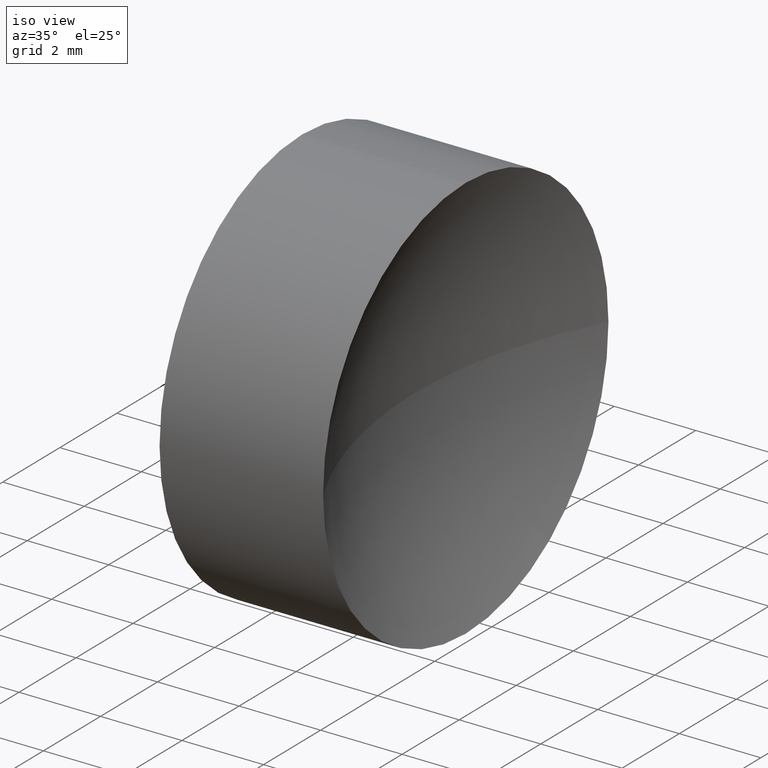
[diagram: clean part render]
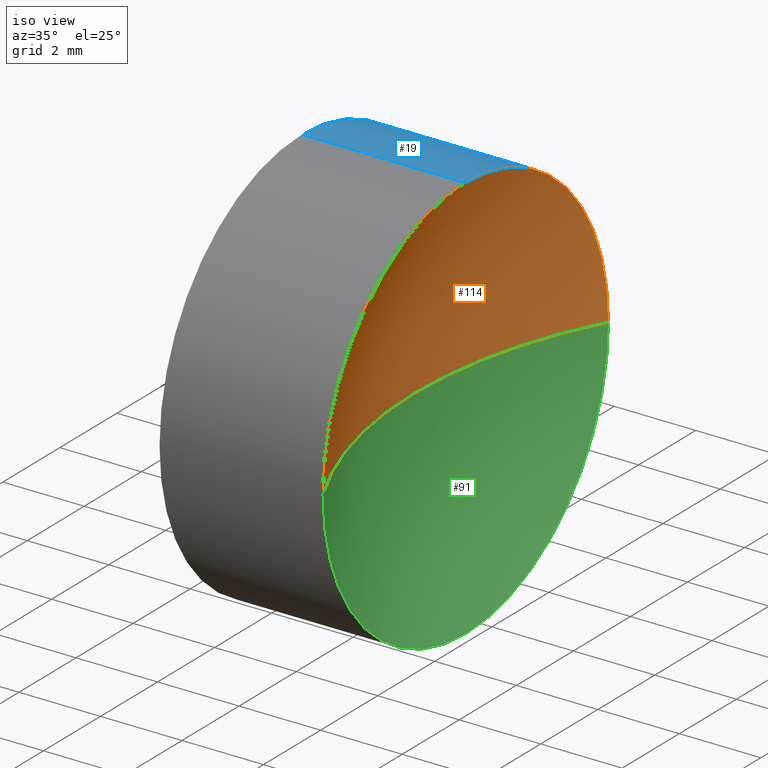
[diagram: same view with three faces highlighted in distinct colors, each labeled with its STEP entity id]
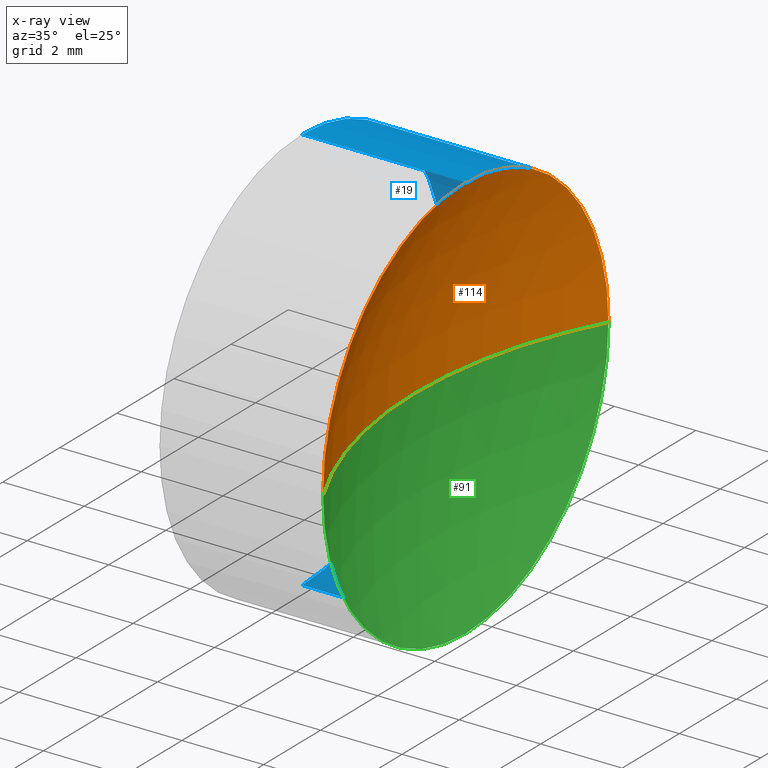
[diagram: x-ray of the same camera — body ghosted, the three highlighted faces saturated]
A machine part, iso view with three faces highlighted in distinct colors.
The next image is the same camera in x-ray (body ghosted, the three faces saturated) — at least one of them is partly hidden behind the body in this view.
Their STEP definitions:

[orange] entity #114 — the highlighted spherical surface has radius 10.58 mm.
#10 = DIRECTION ( 'NONE',  ( 0.0000000000000000000, 0.0000000000000000000, -1.000000000000000000 ) ) ;
#13 = DIRECTION ( 'NONE',  ( 1.000000000000000000, 0.0000000000000000000, 0.0000000000000000000 ) ) ;
#14 = AXIS2_PLACEMENT_3D ( 'NONE', #100, #10, #96 ) ;
#20 = SPHERICAL_SURFACE ( 'NONE', #14, 10.57999999999999800 ) ;
#30 = DIRECTION ( 'NONE',  ( -1.000000000000000000, -0.0000000000000000000, -0.0000000000000000000 ) ) ;
#35 = ORIENTED_EDGE ( 'NONE', *, *, #135, .F. ) ;
#36 = AXIS2_PLACEMENT_3D ( 'NONE', #148, #30, #180 ) ;
#39 = ORIENTED_EDGE ( 'NONE', *, *, #228, .T. ) ;
#40 = CARTESIAN_POINT ( 'NONE',  ( 24.77425636387503600, 13.04452057459747700, 0.0000000000000000000 ) ) ;
#42 = ORIENTED_EDGE ( 'NONE', *, *, #130, .F. ) ;
#46 = CARTESIAN_POINT ( 'NONE',  ( 35.35425636387503800, 13.04452057459747700, 0.0000000000000000000 ) ) ;
#48 = CARTESIAN_POINT ( 'NONE',  ( 26.03028725195708800, 8.044520574597481000, -6.123233995736762300E-016 ) ) ;
#51 = CIRCLE ( 'NONE', #182, 10.57999999999999800 ) ;
#77 = DIRECTION ( 'NONE',  ( 0.0000000000000000000, 0.0000000000000000000, 1.000000000000000000 ) ) ;
#80 = DIRECTION ( 'NONE',  ( -1.000000000000000000, -0.0000000000000000000, -0.0000000000000000000 ) ) ;
#84 = DIRECTION ( 'NONE',  ( 0.0000000000000000000, 1.224646799147353200E-016, -1.000000000000000000 ) ) ;
#90 = AXIS2_PLACEMENT_3D ( 'NONE', #46, #165, #13 ) ;
#92 = VERTEX_POINT ( 'NONE', #40 ) ;
#94 = EDGE_CURVE ( 'NONE', #105, #172, #171, .T. ) ;
#96 = DIRECTION ( 'NONE',  ( 0.0000000000000000000, 1.000000000000000000, 0.0000000000000000000 ) ) ;
#100 = CARTESIAN_POINT ( 'NONE',  ( 35.35425636387503800, 13.04452057459747700, 0.0000000000000000000 ) ) ;
#104 = FACE_OUTER_BOUND ( 'NONE', #191, .T. ) ;
#105 = VERTEX_POINT ( 'NONE', #143 ) ;
#108 = CIRCLE ( 'NONE', #36, 4.999999999999995600 ) ;
#114 = ADVANCED_FACE ( 'NONE', ( #104 ), #20, .F. ) ;
#125 = DIRECTION ( 'NONE',  ( 0.0000000000000000000, 1.000000000000000000, 1.224646799147353500E-016 ) ) ;
#130 = EDGE_CURVE ( 'NONE', #172, #92, #214, .T. ) ;
#135 = EDGE_CURVE ( 'NONE', #198, #105, #108, .T. ) ;
#137 = ORIENTED_EDGE ( 'NONE', *, *, #94, .F. ) ;
#143 = CARTESIAN_POINT ( 'NONE',  ( 26.03028725195708800, 13.04452057459747900, 4.999999999999995600 ) ) ;
#148 = CARTESIAN_POINT ( 'NONE',  ( 26.03028725195708800, 13.04452057459747900, 0.0000000000000000000 ) ) ;
#165 = DIRECTION ( 'NONE',  ( 0.0000000000000000000, 0.0000000000000000000, 1.000000000000000000 ) ) ;
#171 = CIRCLE ( 'NONE', #216, 4.999999999999995600 ) ;
#172 = VERTEX_POINT ( 'NONE', #213 ) ;
#180 = DIRECTION ( 'NONE',  ( 0.0000000000000000000, 0.0000000000000000000, 1.000000000000000000 ) ) ;
#182 = AXIS2_PLACEMENT_3D ( 'NONE', #226, #84, #125 ) ;
#191 = EDGE_LOOP ( 'NONE', ( #35, #39, #42, #137 ) ) ;
#198 = VERTEX_POINT ( 'NONE', #48 ) ;
#199 = CARTESIAN_POINT ( 'NONE',  ( 26.03028725195708800, 13.04452057459747900, 0.0000000000000000000 ) ) ;
#213 = CARTESIAN_POINT ( 'NONE',  ( 26.03028725195708800, 18.04452057459747400, 0.0000000000000000000 ) ) ;
#214 = CIRCLE ( 'NONE', #90, 10.57999999999999800 ) ;
#216 = AXIS2_PLACEMENT_3D ( 'NONE', #199, #80, #77 ) ;
#226 = CARTESIAN_POINT ( 'NONE',  ( 35.35425636387503800, 13.04452057459747700, 0.0000000000000000000 ) ) ;
#228 = EDGE_CURVE ( 'NONE', #198, #92, #51, .T. ) ;

[blue] entity #19 — the highlighted cylindrical surface (partial cylindrical patch) has radius 5 mm, axis along (-1, -0, -0).
#9 = DIRECTION ( 'NONE',  ( -1.000000000000000000, -0.0000000000000000000, -0.0000000000000000000 ) ) ;
#19 = ADVANCED_FACE ( 'NONE', ( #78 ), #128, .T. ) ;
#25 = LINE ( 'NONE', #26, #33 ) ;
#26 = CARTESIAN_POINT ( 'NONE',  ( 21.22493055706841100, 13.04452057459747900, 4.999999999999999100 ) ) ;
#28 = CARTESIAN_POINT ( 'NONE',  ( 22.01822547579298100, 13.04452057459747900, 4.999999999999999100 ) ) ;
#29 = CIRCLE ( 'NONE', #150, 4.999999999999999100 ) ;
#31 = DIRECTION ( 'NONE',  ( 0.0000000000000000000, 0.0000000000000000000, 1.000000000000000000 ) ) ;
#33 = VECTOR ( 'NONE', #9, 1000.000000000000000 ) ;
#41 = AXIS2_PLACEMENT_3D ( 'NONE', #146, #223, #221 ) ;
#43 = CARTESIAN_POINT ( 'NONE',  ( 21.22493055706841100, 13.04452057459747900, -4.999999999999999100 ) ) ;
#44 = EDGE_LOOP ( 'NONE', ( #212, #124, #145, #153, #181, #131 ) ) ;
#45 = CARTESIAN_POINT ( 'NONE',  ( 26.03028725195708800, 13.04452057459747900, -4.999999999999995600 ) ) ;
#54 = AXIS2_PLACEMENT_3D ( 'NONE', #220, #218, #177 ) ;
#62 = CARTESIAN_POINT ( 'NONE',  ( 22.01822547579298100, 13.04452057459747900, -4.999999999999999100 ) ) ;
#73 = VECTOR ( 'NONE', #101, 1000.000000000000000 ) ;
#77 = DIRECTION ( 'NONE',  ( 0.0000000000000000000, 0.0000000000000000000, 1.000000000000000000 ) ) ;
#78 = FACE_OUTER_BOUND ( 'NONE', #44, .T. ) ;
#80 = DIRECTION ( 'NONE',  ( -1.000000000000000000, -0.0000000000000000000, -0.0000000000000000000 ) ) ;
#85 = AXIS2_PLACEMENT_3D ( 'NONE', #225, #99, #31 ) ;
#94 = EDGE_CURVE ( 'NONE', #105, #172, #171, .T. ) ;
#99 = DIRECTION ( 'NONE',  ( -1.000000000000000000, -0.0000000000000000000, -0.0000000000000000000 ) ) ;
#101 = DIRECTION ( 'NONE',  ( -1.000000000000000000, -0.0000000000000000000, -0.0000000000000000000 ) ) ;
#102 = EDGE_CURVE ( 'NONE', #105, #117, #25, .T. ) ;
#105 = VERTEX_POINT ( 'NONE', #143 ) ;
#107 = EDGE_CURVE ( 'NONE', #117, #149, #111, .T. ) ;
#111 = CIRCLE ( 'NONE', #41, 4.999999999999999100 ) ;
#117 = VERTEX_POINT ( 'NONE', #28 ) ;
#121 = CIRCLE ( 'NONE', #85, 4.999999999999995600 ) ;
#122 = CARTESIAN_POINT ( 'NONE',  ( 22.01822547579298100, 18.04452057459747400, 0.0000000000000000000 ) ) ;
#124 = ORIENTED_EDGE ( 'NONE', *, *, #163, .T. ) ;
#127 = DIRECTION ( 'NONE',  ( -1.000000000000000000, -0.0000000000000000000, -0.0000000000000000000 ) ) ;
#128 = CYLINDRICAL_SURFACE ( 'NONE', #54, 4.999999999999999100 ) ;
#131 = ORIENTED_EDGE ( 'NONE', *, *, #94, .T. ) ;
#134 = VERTEX_POINT ( 'NONE', #62 ) ;
#143 = CARTESIAN_POINT ( 'NONE',  ( 26.03028725195708800, 13.04452057459747900, 4.999999999999995600 ) ) ;
#145 = ORIENTED_EDGE ( 'NONE', *, *, #207, .F. ) ;
#146 = CARTESIAN_POINT ( 'NONE',  ( 22.01822547579298100, 13.04452057459747900, 0.0000000000000000000 ) ) ;
#149 = VERTEX_POINT ( 'NONE', #122 ) ;
#150 = AXIS2_PLACEMENT_3D ( 'NONE', #184, #127, #151 ) ;
#151 = DIRECTION ( 'NONE',  ( 0.0000000000000000000, 0.0000000000000000000, 1.000000000000000000 ) ) ;
#153 = ORIENTED_EDGE ( 'NONE', *, *, #107, .F. ) ;
#155 = LINE ( 'NONE', #43, #73 ) ;
#156 = EDGE_CURVE ( 'NONE', #172, #186, #121, .T. ) ;
#163 = EDGE_CURVE ( 'NONE', #186, #134, #155, .T. ) ;
#171 = CIRCLE ( 'NONE', #216, 4.999999999999995600 ) ;
#172 = VERTEX_POINT ( 'NONE', #213 ) ;
#177 = DIRECTION ( 'NONE',  ( 0.0000000000000000000, 0.0000000000000000000, 1.000000000000000000 ) ) ;
#181 = ORIENTED_EDGE ( 'NONE', *, *, #102, .F. ) ;
#184 = CARTESIAN_POINT ( 'NONE',  ( 22.01822547579298100, 13.04452057459747900, 0.0000000000000000000 ) ) ;
#186 = VERTEX_POINT ( 'NONE', #45 ) ;
#199 = CARTESIAN_POINT ( 'NONE',  ( 26.03028725195708800, 13.04452057459747900, 0.0000000000000000000 ) ) ;
#207 = EDGE_CURVE ( 'NONE', #149, #134, #29, .T. ) ;
#212 = ORIENTED_EDGE ( 'NONE', *, *, #156, .T. ) ;
#213 = CARTESIAN_POINT ( 'NONE',  ( 26.03028725195708800, 18.04452057459747400, 0.0000000000000000000 ) ) ;
#216 = AXIS2_PLACEMENT_3D ( 'NONE', #199, #80, #77 ) ;
#218 = DIRECTION ( 'NONE',  ( -1.000000000000000000, -0.0000000000000000000, -0.0000000000000000000 ) ) ;
#220 = CARTESIAN_POINT ( 'NONE',  ( 21.22493055706841100, 13.04452057459747900, 0.0000000000000000000 ) ) ;
#221 = DIRECTION ( 'NONE',  ( 0.0000000000000000000, 0.0000000000000000000, 1.000000000000000000 ) ) ;
#223 = DIRECTION ( 'NONE',  ( -1.000000000000000000, -0.0000000000000000000, -0.0000000000000000000 ) ) ;
#225 = CARTESIAN_POINT ( 'NONE',  ( 26.03028725195708800, 13.04452057459747900, 0.0000000000000000000 ) ) ;

[green] entity #91 — the highlighted spherical surface has radius 10.58 mm.
#13 = DIRECTION ( 'NONE',  ( 1.000000000000000000, 0.0000000000000000000, 0.0000000000000000000 ) ) ;
#16 = EDGE_LOOP ( 'NONE', ( #88, #158, #201, #227 ) ) ;
#31 = DIRECTION ( 'NONE',  ( 0.0000000000000000000, 0.0000000000000000000, 1.000000000000000000 ) ) ;
#40 = CARTESIAN_POINT ( 'NONE',  ( 24.77425636387503600, 13.04452057459747700, 0.0000000000000000000 ) ) ;
#45 = CARTESIAN_POINT ( 'NONE',  ( 26.03028725195708800, 13.04452057459747900, -4.999999999999995600 ) ) ;
#46 = CARTESIAN_POINT ( 'NONE',  ( 35.35425636387503800, 13.04452057459747700, 0.0000000000000000000 ) ) ;
#48 = CARTESIAN_POINT ( 'NONE',  ( 26.03028725195708800, 8.044520574597481000, -6.123233995736762300E-016 ) ) ;
#51 = CIRCLE ( 'NONE', #182, 10.57999999999999800 ) ;
#63 = CARTESIAN_POINT ( 'NONE',  ( 26.03028725195708800, 13.04452057459747900, 0.0000000000000000000 ) ) ;
#65 = SPHERICAL_SURFACE ( 'NONE', #79, 10.57999999999999800 ) ;
#79 = AXIS2_PLACEMENT_3D ( 'NONE', #192, #167, #103 ) ;
#82 = EDGE_CURVE ( 'NONE', #186, #198, #187, .T. ) ;
#84 = DIRECTION ( 'NONE',  ( 0.0000000000000000000, 1.224646799147353200E-016, -1.000000000000000000 ) ) ;
#85 = AXIS2_PLACEMENT_3D ( 'NONE', #225, #99, #31 ) ;
#88 = ORIENTED_EDGE ( 'NONE', *, *, #228, .F. ) ;
#90 = AXIS2_PLACEMENT_3D ( 'NONE', #46, #165, #13 ) ;
#91 = ADVANCED_FACE ( 'NONE', ( #97 ), #65, .F. ) ;
#92 = VERTEX_POINT ( 'NONE', #40 ) ;
#97 = FACE_OUTER_BOUND ( 'NONE', #16, .T. ) ;
#99 = DIRECTION ( 'NONE',  ( -1.000000000000000000, -0.0000000000000000000, -0.0000000000000000000 ) ) ;
#103 = DIRECTION ( 'NONE',  ( 0.0000000000000000000, 1.000000000000000000, 0.0000000000000000000 ) ) ;
#112 = AXIS2_PLACEMENT_3D ( 'NONE', #63, #142, #196 ) ;
#121 = CIRCLE ( 'NONE', #85, 4.999999999999995600 ) ;
#125 = DIRECTION ( 'NONE',  ( 0.0000000000000000000, 1.000000000000000000, 1.224646799147353500E-016 ) ) ;
#130 = EDGE_CURVE ( 'NONE', #172, #92, #214, .T. ) ;
#142 = DIRECTION ( 'NONE',  ( -1.000000000000000000, -0.0000000000000000000, -0.0000000000000000000 ) ) ;
#156 = EDGE_CURVE ( 'NONE', #172, #186, #121, .T. ) ;
#158 = ORIENTED_EDGE ( 'NONE', *, *, #82, .F. ) ;
#165 = DIRECTION ( 'NONE',  ( 0.0000000000000000000, 0.0000000000000000000, 1.000000000000000000 ) ) ;
#167 = DIRECTION ( 'NONE',  ( 0.0000000000000000000, 0.0000000000000000000, -1.000000000000000000 ) ) ;
#172 = VERTEX_POINT ( 'NONE', #213 ) ;
#182 = AXIS2_PLACEMENT_3D ( 'NONE', #226, #84, #125 ) ;
#186 = VERTEX_POINT ( 'NONE', #45 ) ;
#187 = CIRCLE ( 'NONE', #112, 4.999999999999995600 ) ;
#192 = CARTESIAN_POINT ( 'NONE',  ( 35.35425636387503800, 13.04452057459747700, 0.0000000000000000000 ) ) ;
#196 = DIRECTION ( 'NONE',  ( 0.0000000000000000000, 0.0000000000000000000, 1.000000000000000000 ) ) ;
#198 = VERTEX_POINT ( 'NONE', #48 ) ;
#201 = ORIENTED_EDGE ( 'NONE', *, *, #156, .F. ) ;
#213 = CARTESIAN_POINT ( 'NONE',  ( 26.03028725195708800, 18.04452057459747400, 0.0000000000000000000 ) ) ;
#214 = CIRCLE ( 'NONE', #90, 10.57999999999999800 ) ;
#225 = CARTESIAN_POINT ( 'NONE',  ( 26.03028725195708800, 13.04452057459747900, 0.0000000000000000000 ) ) ;
#226 = CARTESIAN_POINT ( 'NONE',  ( 35.35425636387503800, 13.04452057459747700, 0.0000000000000000000 ) ) ;
#227 = ORIENTED_EDGE ( 'NONE', *, *, #130, .T. ) ;
#228 = EDGE_CURVE ( 'NONE', #198, #92, #51, .T. ) ;